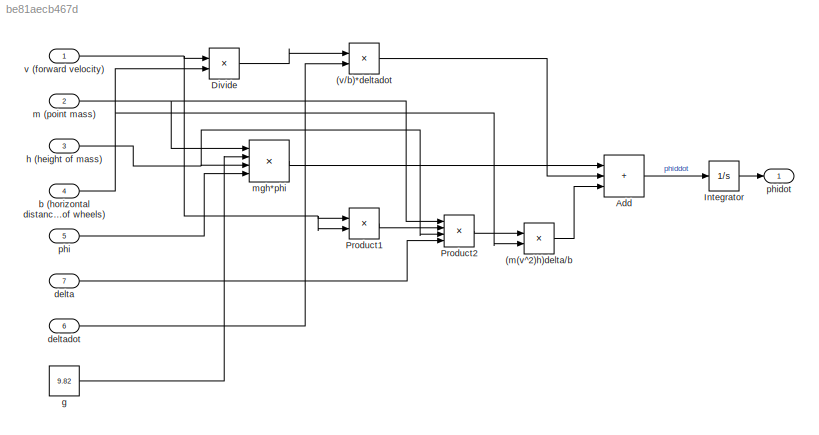
MODEL slx_be81aecb467d
KIND model
CONFIG AbsTol = auto
CONFIG EnableMultiTasking = off
CONFIG FixedStep = auto
CONFIG MaxStep = auto
CONFIG MinStep = auto
CONFIG RelTol = 1e-3
CONFIG SampleTimeConstraint = Unconstrained
CONFIG SolverName = VariableStepAuto
CONFIG StartTime = 0.0
CONFIG StopTime = 10.0
BLOCK [Product] (m(v^2)h)delta//b
  Inputs = */
  Ports = [2, 1]
BLOCK [Product] (v//b)*deltadot
  Ports = [2, 1]
BLOCK [Sum] Add
  IconShape = rectangular
  Inputs = +++
  Ports = [3, 1]
BLOCK [Product] Divide
  Inputs = */
  Ports = [2, 1]
BLOCK [Integrator] Integrator
  Ports = [1, 1]
BLOCK [Product] Product1
  Ports = [2, 1]
BLOCK [Product] Product2
  Inputs = 4
  Ports = [4, 1]
BLOCK [Inport] b (horizontal distance between center of wheels)
  Port = 4
BLOCK [Inport] delta
  Port = 7
BLOCK [Inport] deltadot
  Port = 6
BLOCK [Constant] g
  Value = 9.82
BLOCK [Inport] h (height of mass)
  Port = 3
BLOCK [Inport] m (point mass)
  Port = 2
BLOCK [Product] mgh*phi
  Inputs = 4
  Ports = [4, 1]
BLOCK [Inport] phi
  Port = 5
BLOCK [Outport] phidot
BLOCK [Inport] v (forward velocity)
LINE (m(v^2)h)delta//b:1 -> Add:3
LINE (v//b)*deltadot:1 -> Add:2
LINE Add:1 -> Integrator:1
LINE Divide:1 -> (v//b)*deltadot:1
LINE Integrator:1 -> phidot:1
LINE Product1:1 -> Product2:2
LINE Product2:1 -> (m(v^2)h)delta//b:1
NET b (horizontal distance between center of wheels):1 -> (m(v^2)h)delta//b:2, Divide:2
LINE delta:1 -> Product2:4
LINE deltadot:1 -> (v//b)*deltadot:2
LINE g:1 -> mgh*phi:2
NET h (height of mass):1 -> Product2:3, mgh*phi:3
NET m (point mass):1 -> Product2:1, mgh*phi:1
LINE mgh*phi:1 -> Add:1
LINE phi:1 -> mgh*phi:4
NET v (forward velocity):1 -> Divide:1, Product1:1, Product1:2
note: NET lines group one-source signal fan-out (src -> all destinations, sorted); 1:1 wires keep LINE
